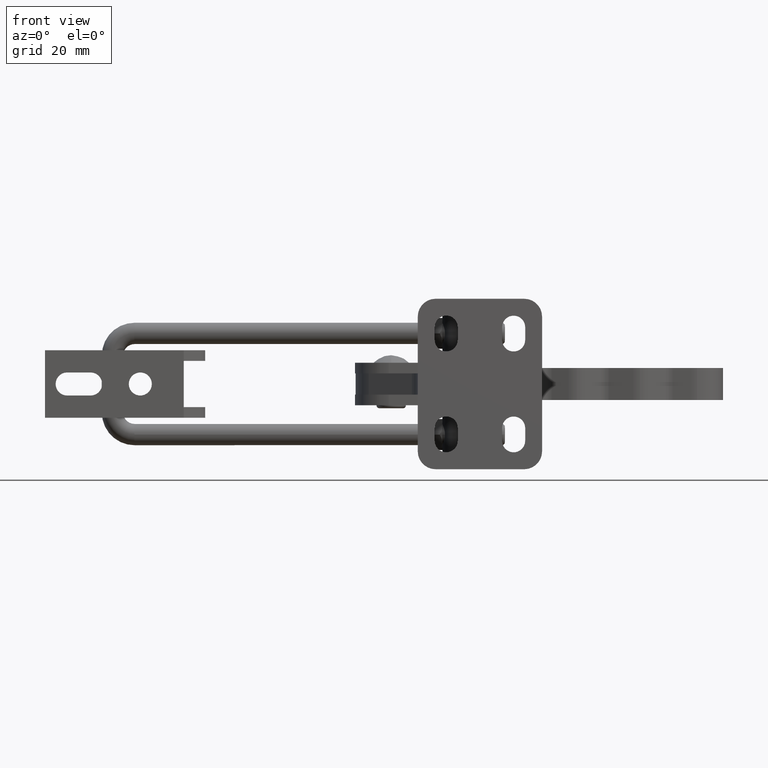
[diagram: clean part render]
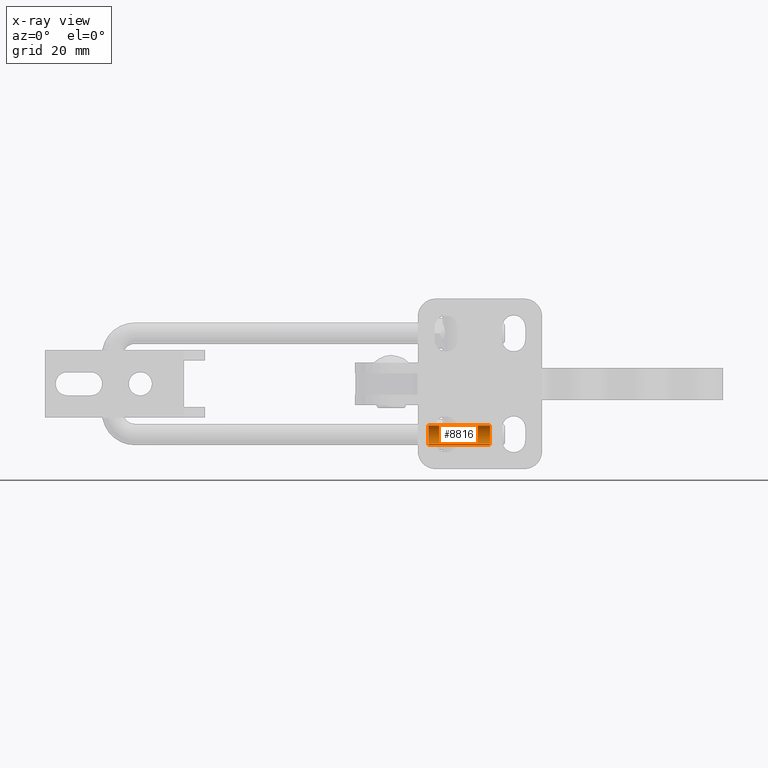
[diagram: x-ray — body ghosted, one internal face saturated and labeled with its STEP entity id]
A machine part, front view, then the same camera in x-ray: the body is ghosted and one INTERNAL B-rep face — a face not visible from any outside direction — is saturated and labeled: STEP entity #8816.
In plain terms, the highlighted cylindrical surface (edge-blend (fillet) strip) has radius 3 mm, axis along (-0.9998, 0.0206, -0).
Its self-contained STEP definition (entity closure, byte-faithful):
#12 = EDGE_CURVE ( 'NONE', #3188, #7501, #5824, .T. ) ;
#71 = LINE ( 'NONE', #5766, #535 ) ;
#88 = CARTESIAN_POINT ( 'NONE',  ( -28.68610217046605400, 17.75992384205989100, -17.07219001802031500 ) ) ;
#184 = CARTESIAN_POINT ( 'NONE',  ( -27.97551314054183200, 21.62150815981607000, -15.23337005052107600 ) ) ;
#314 = VERTEX_POINT ( 'NONE', #5816 ) ;
#350 = ORIENTED_EDGE ( 'NONE', *, *, #1759, .T. ) ;
#396 = DIRECTION ( 'NONE',  ( -0.9997881570176434500, 0.02058254326520920000, -8.673617379884037000E-018 ) ) ;
#535 = VECTOR ( 'NONE', #3238, 1000.000000000000100 ) ;
#818 = CARTESIAN_POINT ( 'NONE',  ( -28.71795397972040600, 18.01353155314767600, -17.14870660812920300 ) ) ;
#921 = CARTESIAN_POINT ( 'NONE',  ( -27.87864492948116900, 21.78366700516243200, -14.34967787659975100 ) ) ;
#929 = DIRECTION ( 'NONE',  ( -0.9997881570176433400, 0.02058254326520919700, -8.673617379884035500E-018 ) ) ;
#1171 = VECTOR ( 'NONE', #7197, 1000.000000000000100 ) ;
#1383 = EDGE_CURVE ( 'NONE', #7501, #1581, #71, .T. ) ;
#1385 = CARTESIAN_POINT ( 'NONE',  ( -15.35487216368407800, 18.51157209158752800, -14.25000000000061100 ) ) ;
#1475 = CARTESIAN_POINT ( 'NONE',  ( -32.73207050283868100, 17.36899698171238900, -16.84807621135399800 ) ) ;
#1510 = CARTESIAN_POINT ( 'NONE',  ( -28.59242266330957300, 17.28377444715671600, -16.84807621135390900 ) ) ;
#1581 = VERTEX_POINT ( 'NONE', #1475 ) ;
#1628 = EDGE_CURVE ( 'NONE', #8558, #8511, #7896, .T. ) ;
#1659 = CARTESIAN_POINT ( 'NONE',  ( -28.57933611543608200, 20.12116649960782800, -16.95145594813587700 ) ) ;
#1689 = CARTESIAN_POINT ( 'NONE',  ( -27.94070026961157500, 21.67953951307806500, -13.45585914026406400 ) ) ;
#1759 = EDGE_CURVE ( 'NONE', #8511, #1581, #8986, .T. ) ;
#1794 = CARTESIAN_POINT ( 'NONE',  ( -28.67117024497248000, 20.28603127970449500, -11.65192378864737300 ) ) ;
#1911 = AXIS2_PLACEMENT_3D ( 'NONE', #3736, #9037, #8245 ) ;
#2091 = VECTOR ( 'NONE', #929, 1000.000000000000100 ) ;
#2148 = DIRECTION ( 'NONE',  ( 0.01029127163260437300, 0.4998940785088238900, -0.8660254037844373800 ) ) ;
#2184 = AXIS2_PLACEMENT_3D ( 'NONE', #8541, #9379, #7065 ) ;
#2242 = CIRCLE ( 'NONE', #9492, 3.000000000000000900 ) ;
#2380 = CARTESIAN_POINT ( 'NONE',  ( -28.64283628281394900, 19.84609103906690200, -17.07197268134911300 ) ) ;
#2407 = CARTESIAN_POINT ( 'NONE',  ( -28.43066882280881200, 20.60846491494058700, -16.63374492886589800 ) ) ;
#2416 = DIRECTION ( 'NONE',  ( -0.9997881570176433400, 0.02058254326520919700, -8.673617379884035500E-018 ) ) ;
#2434 = CARTESIAN_POINT ( 'NONE',  ( -28.13199440975957100, 21.32679733844279500, -12.64543933788603300 ) ) ;
#2538 = LINE ( 'NONE', #3883, #2091 ) ;
#2993 = EDGE_CURVE ( 'NONE', #8558, #5993, #9480, .T. ) ;
#3052 = ORIENTED_EDGE ( 'NONE', *, *, #4716, .F. ) ;
#3150 = CARTESIAN_POINT ( 'NONE',  ( -28.30828915554422300, 20.93387042247390500, -16.34195441191543100 ) ) ;
#3183 = CARTESIAN_POINT ( 'NONE',  ( -28.33664920723997900, 20.86333766239044600, -12.08723111334905600 ) ) ;
#3188 = VERTEX_POINT ( 'NONE', #9747 ) ;
#3238 = DIRECTION ( 'NONE',  ( -0.9997881570176433400, 0.02058254326520919700, -8.673617379884035500E-018 ) ) ;
#3450 = CARTESIAN_POINT ( 'NONE',  ( -28.73291787476810600, 17.28666680865155000, -16.84807621135399800 ) ) ;
#3607 = ORIENTED_EDGE ( 'NONE', *, *, #9421, .F. ) ;
#3736 = CARTESIAN_POINT ( 'NONE',  ( -28.70204405987029300, 18.78634904417802400, -14.25000000000068600 ) ) ;
#3780 = CARTESIAN_POINT ( 'NONE',  ( -28.59242266330957300, 17.28377444715671600, -16.84807621135390900 ) ) ;
#3841 = ORIENTED_EDGE ( 'NONE', *, *, #12, .F. ) ;
#3879 = CARTESIAN_POINT ( 'NONE',  ( -28.18661546363778900, 21.21080109765676600, -16.00903081219060600 ) ) ;
#3883 = CARTESIAN_POINT ( 'NONE',  ( -28.67117024497248000, 20.28603127970449500, -11.65192378864737300 ) ) ;
#3891 = VECTOR ( 'NONE', #2416, 1000.000000000000100 ) ;
#3913 = CARTESIAN_POINT ( 'NONE',  ( -28.45691415536953500, 20.53025170346532800, -11.80791226316434900 ) ) ;
#4057 = CARTESIAN_POINT ( 'NONE',  ( -32.70119668794086500, 18.86867921723886000, -14.25000000000068600 ) ) ;
#4352 = EDGE_CURVE ( 'NONE', #5993, #4834, #9785, .T. ) ;
#4532 = CARTESIAN_POINT ( 'NONE',  ( -28.64391454709585000, 17.51673711924825100, -16.97194598534335000 ) ) ;
#4552 = ORIENTED_EDGE ( 'NONE', *, *, #2993, .F. ) ;
#4598 = CARTESIAN_POINT ( 'NONE',  ( -28.68613414002018300, 19.55916653520847200, -17.14870660812917400 ) ) ;
#4631 = CARTESIAN_POINT ( 'NONE',  ( -28.07327185561298700, 21.43925677651220600, -15.63489244160881600 ) ) ;
#4662 = CARTESIAN_POINT ( 'NONE',  ( -28.53067503351395100, 20.28313891820965500, -11.65192378864729000 ) ) ;
#4686 = CARTESIAN_POINT ( 'NONE',  ( -32.67032287304304800, 20.36836145276533500, -11.65192378864737300 ) ) ;
#4716 = EDGE_CURVE ( 'NONE', #314, #5234, #2242, .T. ) ;
#4719 = AXIS2_PLACEMENT_3D ( 'NONE', #4057, #9112, #5884 ) ;
#4775 = ORIENTED_EDGE ( 'NONE', *, *, #6134, .T. ) ;
#4834 = VERTEX_POINT ( 'NONE', #9009 ) ;
#4850 = CARTESIAN_POINT ( 'NONE',  ( -28.70204405987029300, 18.78634904417802400, -14.25000000000068600 ) ) ;
#5234 = VERTEX_POINT ( 'NONE', #9437 ) ;
#5273 = CARTESIAN_POINT ( 'NONE',  ( -28.73291787476810600, 17.28666680865155000, -16.84807621135399800 ) ) ;
#5286 = CARTESIAN_POINT ( 'NONE',  ( -28.70393177924275500, 17.88492797706825500, -17.11449686760571600 ) ) ;
#5396 = CARTESIAN_POINT ( 'NONE',  ( -27.92643524757718200, 21.70376540594339300, -14.95057867711210300 ) ) ;
#5516 = VERTEX_POINT ( 'NONE', #1510 ) ;
#5519 = CARTESIAN_POINT ( 'NONE',  ( -28.67117024497248000, 20.28603127970449500, -11.65192378864737300 ) ) ;
#5619 = DIRECTION ( 'NONE',  ( -0.01029127163260437800, -0.4998940785088241100, -0.8660254037844371500 ) ) ;
#5766 = CARTESIAN_POINT ( 'NONE',  ( -28.73291787476810600, 17.28666680865155000, -16.84807621135399800 ) ) ;
#5816 = CARTESIAN_POINT ( 'NONE',  ( -15.32399834878626700, 20.01125432711393900, -11.65192378864737300 ) ) ;
#5824 = CIRCLE ( 'NONE', #2184, 2.999999999999999600 ) ;
#5884 = DIRECTION ( 'NONE',  ( -0.01029127163260553500, -0.4998940785088241100, -0.8660254037844371500 ) ) ;
#5993 = VERTEX_POINT ( 'NONE', #8297 ) ;
#6106 = ORIENTED_EDGE ( 'NONE', *, *, #1383, .F. ) ;
#6134 = EDGE_CURVE ( 'NONE', #314, #4834, #2538, .T. ) ;
#6174 = CARTESIAN_POINT ( 'NONE',  ( -27.88237764915053100, 21.77770182674698800, -14.04271069391096900 ) ) ;
#6631 = DIRECTION ( 'NONE',  ( -0.9997881570176434500, 0.02058254326520920400, 1.734723475976807500E-018 ) ) ;
#6656 = AXIS2_PLACEMENT_3D ( 'NONE', #4850, #396, #5619 ) ;
#6748 = CYLINDRICAL_SURFACE ( 'NONE', #1911, 2.999999999999999600 ) ;
#6905 = CARTESIAN_POINT ( 'NONE',  ( -28.46961705222239300, 20.49154562226493700, -16.71953447944270700 ) ) ;
#6932 = CARTESIAN_POINT ( 'NONE',  ( -27.99577016985902800, 21.58586376086740800, -13.16835830821908700 ) ) ;
#6974 = FACE_OUTER_BOUND ( 'NONE', #8256, .T. ) ;
#7065 = DIRECTION ( 'NONE',  ( -0.01029127163260437800, -0.4998940785088241100, -0.8660254037844371500 ) ) ;
#7197 = DIRECTION ( 'NONE',  ( -0.9997881570176433400, 0.02058254326520919700, -8.673617379884035500E-018 ) ) ;
#7385 = ORIENTED_EDGE ( 'NONE', *, *, #9573, .F. ) ;
#7501 = VERTEX_POINT ( 'NONE', #5273 ) ;
#7635 = CARTESIAN_POINT ( 'NONE',  ( -28.35000351126782900, 20.82971415960300700, -16.44501510328336700 ) ) ;
#7667 = CARTESIAN_POINT ( 'NONE',  ( -28.21430757063844300, 21.15843735654262000, -12.40296949112825500 ) ) ;
#7896 = LINE ( 'NONE', #1794, #3891 ) ;
#7977 = ORIENTED_EDGE ( 'NONE', *, *, #4352, .F. ) ;
#8023 = B_SPLINE_CURVE_WITH_KNOTS ( 'NONE', 3,
 ( #3780, #8288, #4532, #88, #5286, #818 ),
 .UNSPECIFIED., .F., .F.,
 ( 4, 2, 4 ),
 ( 0.01272862221559509900, 0.01312842919038521200, 0.01352823616517532400 ),
 .UNSPECIFIED. ) ;
#8245 = DIRECTION ( 'NONE',  ( -0.01029127163260437800, -0.4998940785088241100, -0.8660254037844371500 ) ) ;
#8256 = EDGE_LOOP ( 'NONE', ( #3052, #4775, #7977, #4552, #8320, #350, #6106, #3841, #3607, #7385 ) ) ;
#8288 = CARTESIAN_POINT ( 'NONE',  ( -28.61955177629836600, 17.39855535009042600, -16.91400857359411700 ) ) ;
#8297 = CARTESIAN_POINT ( 'NONE',  ( -28.68613414002018300, 19.55916653520847200, -17.14870660812917400 ) ) ;
#8320 = ORIENTED_EDGE ( 'NONE', *, *, #1628, .T. ) ;
#8389 = CARTESIAN_POINT ( 'NONE',  ( -28.22675124372081300, 21.12398017845499600, -16.12430193917047900 ) ) ;
#8414 = CARTESIAN_POINT ( 'NONE',  ( -28.37745175812107200, 20.75755508819310100, -11.98926239606717900 ) ) ;
#8511 = VERTEX_POINT ( 'NONE', #4686 ) ;
#8541 = CARTESIAN_POINT ( 'NONE',  ( -28.70204405987029300, 18.78634904417802400, -14.25000000000068600 ) ) ;
#8558 = VERTEX_POINT ( 'NONE', #5519 ) ;
#8816 = ADVANCED_FACE ( 'NONE', ( #6974 ), #6748, .F. ) ;
#8922 = LINE ( 'NONE', #3450, #1171 ) ;
#8986 = CIRCLE ( 'NONE', #4719, 2.999999999999999600 ) ;
#9009 = CARTESIAN_POINT ( 'NONE',  ( -28.53067503351395100, 20.28313891820965500, -11.65192378864729000 ) ) ;
#9037 = DIRECTION ( 'NONE',  ( -0.9997881570176434500, 0.02058254326520920000, -8.673617379884037000E-018 ) ) ;
#9112 = DIRECTION ( 'NONE',  ( -0.9997881570176434500, 0.02058254326520920000, -8.673617379884037000E-018 ) ) ;
#9188 = CARTESIAN_POINT ( 'NONE',  ( -28.11001630881691300, 21.36819407480916800, -15.76494326226341900 ) ) ;
#9223 = CARTESIAN_POINT ( 'NONE',  ( -28.49543865010453200, 20.40885939817237800, -11.72491189084088400 ) ) ;
#9379 = DIRECTION ( 'NONE',  ( -0.9997881570176434500, 0.02058254326520920000, -8.673617379884037000E-018 ) ) ;
#9421 = EDGE_CURVE ( 'NONE', #5516, #3188, #8023, .T. ) ;
#9437 = CARTESIAN_POINT ( 'NONE',  ( -15.38574597858189500, 17.01188985606099600, -16.84807621135399800 ) ) ;
#9480 = CIRCLE ( 'NONE', #6656, 2.999999999999999600 ) ;
#9492 = AXIS2_PLACEMENT_3D ( 'NONE', #1385, #6631, #2148 ) ;
#9573 = EDGE_CURVE ( 'NONE', #5234, #5516, #8922, .T. ) ;
#9747 = CARTESIAN_POINT ( 'NONE',  ( -28.71795397972040600, 18.01353155314767600, -17.14870660812920300 ) ) ;
#9785 = B_SPLINE_CURVE_WITH_KNOTS ( 'NONE', 3,
 ( #4598, #2380, #1659, #6905, #2407, #7635, #3150, #8389, #3879, #9188, #4631, #184, #5396, #921, #6174, #1689, #6932, #2434, #7667, #3183, #8414, #3913, #9223, #4662 ),
 .UNSPECIFIED., .F., .F.,
 ( 4, 2, 2, 2, 2, 2, 2, 2, 2, 2, 2, 4 ),
 ( 0.01508462226157553400, 0.01598131736599981200, 0.01642966491821194800, 0.01687801247042408600, 0.01732636002263622200, 0.01777470757484835700, 0.01867140267927262800, 0.01956809778369690200, 0.02046479288812117600, 0.02136148799254544700, 0.02180983554475758600, 0.02225818309696972100 ),
 .UNSPECIFIED. ) ;